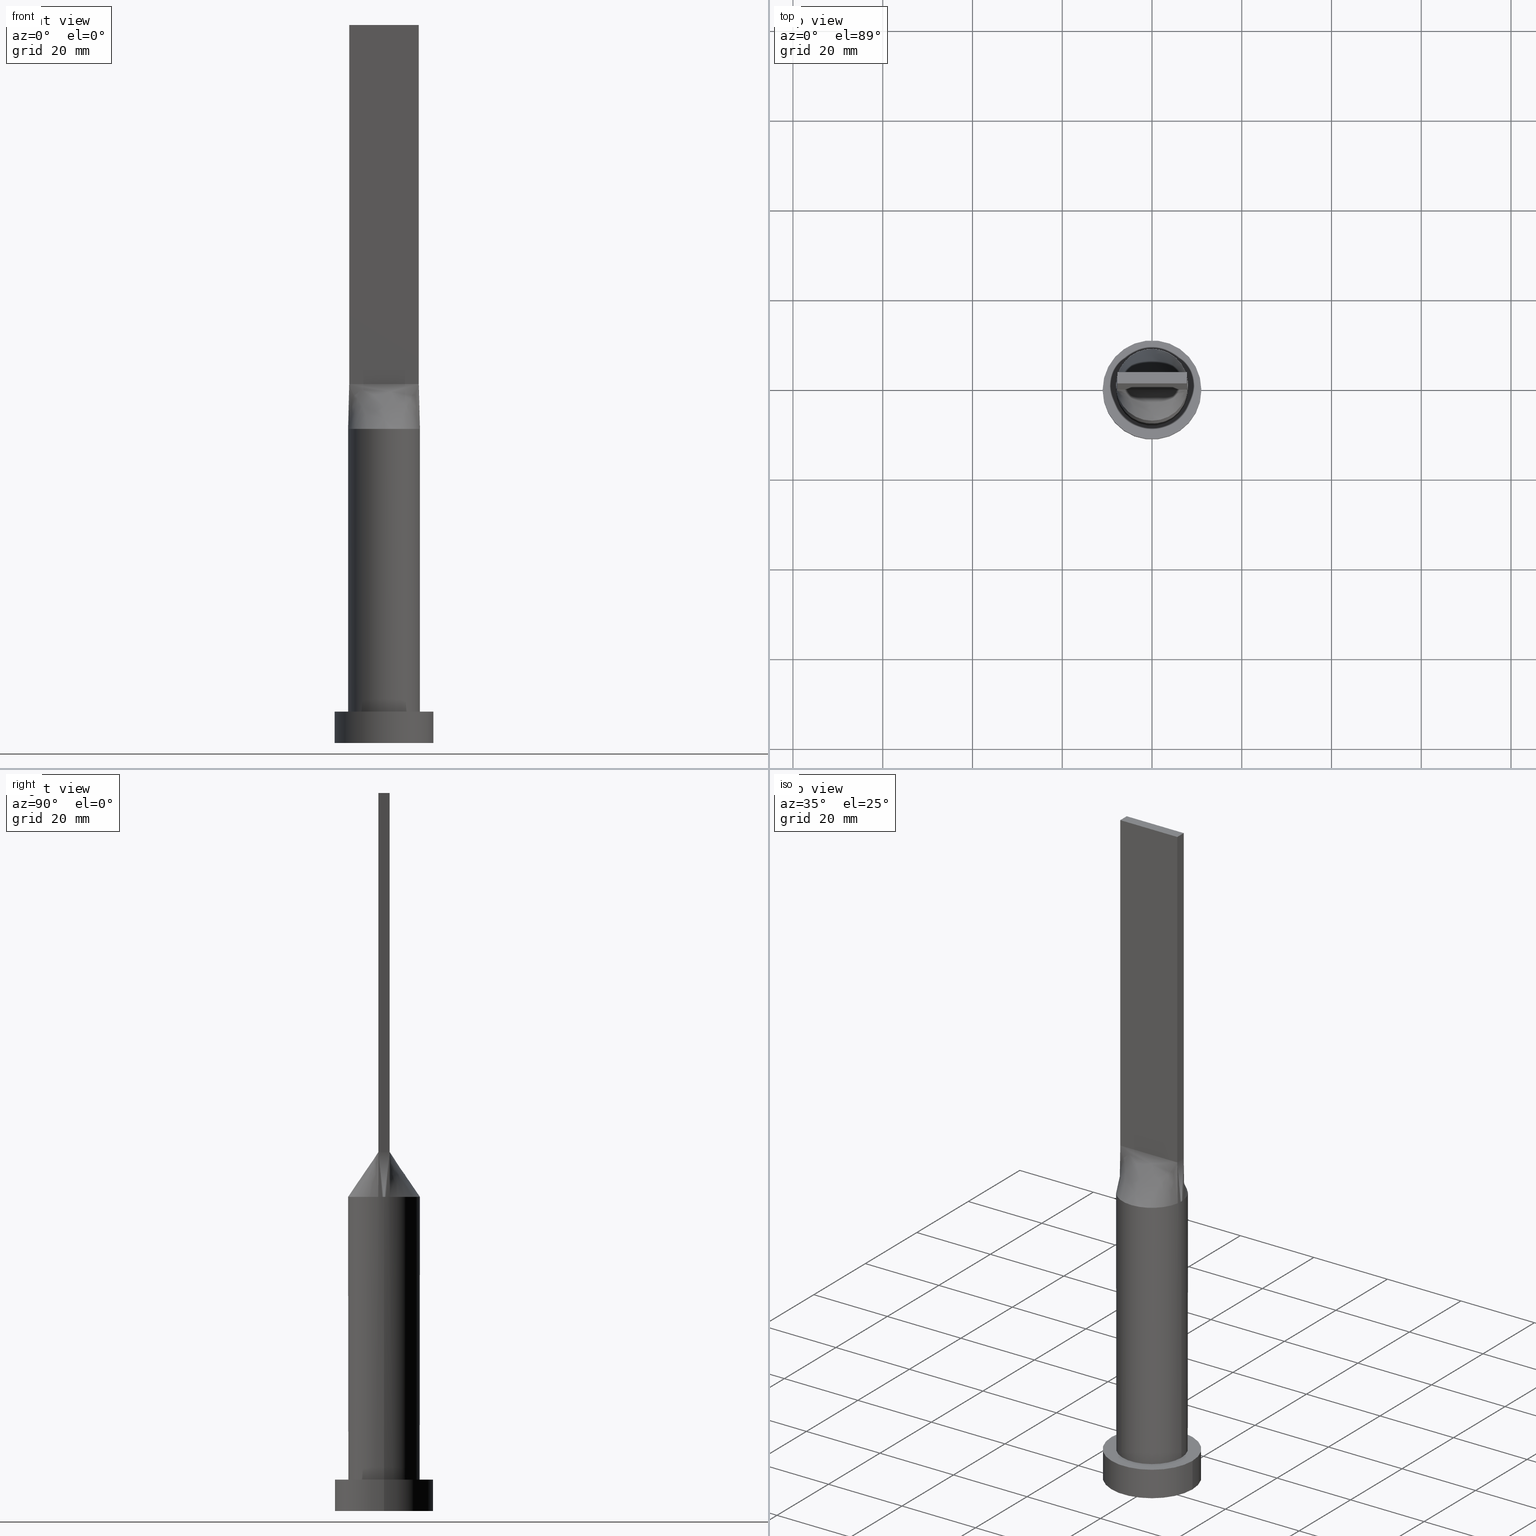
[diagram: canonical four-view strip — front | top / right | iso, engineering-drawing reading convention]
A machine part, canonical four-view strip (front | top / right | iso — engineering-drawing reading convention). The complete STEP part file that produces these views, byte-faithful:
ISO-10303-21;
HEADER;
FILE_DESCRIPTION (( 'STEP AP203' ),
    '1' );
FILE_NAME ('4dbf.STEP',
    '2023-02-13T08:48:47',
    ( '' ),
    ( '' ),
    'SwSTEP 2.0',
    'SolidWorks 2019',
    '' );
FILE_SCHEMA (( 'CONFIG_CONTROL_DESIGN' ));
ENDSEC;

DATA;
#1 = DIRECTION ( 'NONE',  ( 1.000000000000000000, 0.000000000000000000, 0.000000000000000000 ) ) ;
#2 = CC_DESIGN_APPROVAL ( #72, ( #530 ) ) ;
#3 = VERTEX_POINT ( 'NONE', #634 ) ;
#4 = CARTESIAN_POINT ( 'NONE',  ( 0.5677556330368851434, 7.999999999999998224, 70.00000000000000000 ) ) ;
#5 = FACE_OUTER_BOUND ( 'NONE', #395, .T. ) ;
#6 = VERTEX_POINT ( 'NONE', #138 ) ;
#7 = EDGE_CURVE ( 'NONE', #6, #540, #447, .T. ) ;
#8 = DIRECTION ( 'NONE',  ( -1.000000000000000000, 0.000000000000000000, 0.000000000000000000 ) ) ;
#9 = LINE ( 'NONE', #171, #222 ) ;
#10 = CARTESIAN_POINT ( 'NONE',  ( -8.000000000000000000, 0.000000000000000000, 70.00000000000000000 ) ) ;
#11 = DIRECTION ( 'NONE',  ( 1.000000000000000000, 1.776356839400250465E-15, 0.000000000000000000 ) ) ;
#12 = CARTESIAN_POINT ( 'NONE',  ( -1.135368687448994329, 7.938897956688654389, 70.00000000000002842 ) ) ;
#13 = EDGE_CURVE ( 'NONE', #497, #483, #292, .T. ) ;
#14 = CARTESIAN_POINT ( 'NONE',  ( -6.883287261198669960, 4.100742229440782260, 69.99999999999998579 ) ) ;
#15 = CARTESIAN_POINT ( 'NONE',  ( -0.3229166666666666297, -1.249999999999999112, 79.99999999999998579 ) ) ;
#16 = VERTEX_POINT ( 'NONE', #239 ) ;
#17 = CARTESIAN_POINT ( 'NONE',  ( -6.100409024666552327, 5.197691498289451317, 70.00000000000000000 ) ) ;
#18 = CARTESIAN_POINT ( 'NONE',  ( 7.750000000000000000, -1.249999999999999778, 160.0000000000000000 ) ) ;
#19 = CARTESIAN_POINT ( 'NONE',  ( 6.883287261198673512, 4.100742229440780484, 70.00000000000000000 ) ) ;
#20 = LOCAL_TIME ( 9, 48, 47.00000000000000000, #78 ) ;
#21 = EDGE_CURVE ( 'NONE', #631, #136, #34, .T. ) ;
#22 = CARTESIAN_POINT ( 'NONE',  ( 4.217034177653714799, 6.817775467282659818, 70.00000000000001421 ) ) ;
#23 = PLANE ( 'NONE',  #237 ) ;
#24 = MECHANICAL_CONTEXT ( 'NONE', #244, 'mechanical' ) ;
#25 = DIRECTION ( 'NONE',  ( 1.000000000000000000, 0.000000000000000000, -0.000000000000000000 ) ) ;
#26 = APPLICATION_PROTOCOL_DEFINITION ( 'international standard', 'config_control_design', 1994, #139 ) ;
#27 = DIRECTION ( 'NONE',  ( 1.000000000000000000, 0.000000000000000000, 0.000000000000000000 ) ) ;
#28 = PERSON_AND_ORGANIZATION_ROLE ( 'design_owner' ) ;
#29 = CARTESIAN_POINT ( 'NONE',  ( 7.750000000000000000, 1.250000000000000222, 160.0000000000000000 ) ) ;
#30 = CARTESIAN_POINT ( 'NONE',  ( -11.00000000000000000, 0.000000000000000000, 7.000000000000000000 ) ) ;
#31 = EDGE_CURVE ( 'NONE', #147, #6, #89, .T. ) ;
#32 = ORIENTED_EDGE ( 'NONE', *, *, #630, .T. ) ;
#33 = PERSON_AND_ORGANIZATION_ROLE ( 'creator' ) ;
#34 = LINE ( 'NONE', #549, #587 ) ;
#35 = EDGE_CURVE ( 'NONE', #368, #6, #584, .T. ) ;
#36 = ORIENTED_EDGE ( 'NONE', *, *, #291, .F. ) ;
#37 = EDGE_LOOP ( 'NONE', ( #391, #460, #543, #574, #294, #537 ) ) ;
#38 = VECTOR ( 'NONE', #641, 1000.000000000000000 ) ;
#39 = CARTESIAN_POINT ( 'NONE',  ( -7.793128424795161990, -1.923622864214270978, 70.00000000000000000 ) ) ;
#40 = ORIENTED_EDGE ( 'NONE', *, *, #449, .T. ) ;
#41 = DIRECTION ( 'NONE',  ( 0.000000000000000000, 0.000000000000000000, 1.000000000000000000 ) ) ;
#42 = CARTESIAN_POINT ( 'NONE',  ( 5.166666666666668739, -1.249999999999999778, 80.00000000000001421 ) ) ;
#43 = AXIS2_PLACEMENT_3D ( 'NONE', #522, #224, #572 ) ;
#44 = ORIENTED_EDGE ( 'NONE', *, *, #637, .T. ) ;
#45 = CARTESIAN_POINT ( 'NONE',  ( -7.999348843997323044, -0.4273286734864455427, 70.00000000000000000 ) ) ;
#46 = CARTESIAN_POINT ( 'NONE',  ( -5.056714967162549534, 6.220536417275851271, 70.00000000000000000 ) ) ;
#47 = CARTESIAN_POINT ( 'NONE',  ( 11.00000000000000000, 1.347111479062088405E-15, 7.000000000000000000 ) ) ;
#48 = CARTESIAN_POINT ( 'NONE',  ( 0.000000000000000000, 0.000000000000000000, 0.000000000000000000 ) ) ;
#49 = CARTESIAN_POINT ( 'NONE',  ( -1.135368687448994329, 7.938897956688654389, 70.00000000000002842 ) ) ;
#50 = ORIENTED_EDGE ( 'NONE', *, *, #436, .T. ) ;
#51 = CARTESIAN_POINT ( 'NONE',  ( -6.100409024666552327, 5.197691498289451317, 70.00000000000000000 ) ) ;
#52 = EDGE_CURVE ( 'NONE', #595, #368, #350, .T. ) ;
#53 = DIRECTION ( 'NONE',  ( 0.000000000000000000, 0.000000000000000000, 1.000000000000000000 ) ) ;
#54 = CARTESIAN_POINT ( 'NONE',  ( -6.458333333333333925, 1.250000000000000222, 80.00000000000001421 ) ) ;
#55 = CIRCLE ( 'NONE', #201, 11.00000000000000000 ) ;
#56 = ORIENTED_EDGE ( 'NONE', *, *, #13, .T. ) ;
#57 = B_SPLINE_CURVE_WITH_KNOTS ( 'NONE', 3,
 ( #477, #154, #247, #304, #19, #214, #126, #529, #592, #152, #318, #457, #272, #364, #4, #377, #12, #564, #103, #313, #317, #517, #208, #17, #411, #511, #374, #602, #607, #367 ),
 .UNSPECIFIED., .F., .F.,
 ( 4, 2, 2, 2, 2, 2, 2, 2, 2, 2, 2, 2, 2, 2, 4 ),
 ( 0.000000000000000000, 0.1250000000000000000, 0.1875000000000000000, 0.2500000000000000000, 0.3125000000000000000, 0.3750000000000000000, 0.4375000000000000000, 0.5000000000000000000, 0.5625000000000000000, 0.6250000000000000000, 0.6875000000000000000, 0.7500000000000000000, 0.8125000000000000000, 0.8750000000000000000, 1.000000000000000000 ),
 .UNSPECIFIED. ) ;
#58 = DIRECTION ( 'NONE',  ( -1.000000000000000000, 0.000000000000000000, 0.000000000000000000 ) ) ;
#59 = CARTESIAN_POINT ( 'NONE',  ( -3.552083333333333481, -1.249999999999998890, 80.00000000000001421 ) ) ;
#60 = ORIENTED_EDGE ( 'NONE', *, *, #570, .F. ) ;
#61 = FACE_BOUND ( 'NONE', #381, .T. ) ;
#62 = CARTESIAN_POINT ( 'NONE',  ( -2.583333333333333481, -1.249999999999998890, 80.00000000000000000 ) ) ;
#63 = CLOSED_SHELL ( 'NONE', ( #220, #259, #344, #577, #121, #542, #352, #97, #518, #429, #440, #82, #363, #597, #406 ) ) ;
#64 = CARTESIAN_POINT ( 'NONE',  ( 7.750000000000000000, -1.249999999999999778, 160.0000000000000000 ) ) ;
#65 = AXIS2_PLACEMENT_3D ( 'NONE', #128, #626, #471 ) ;
#66 = CARTESIAN_POINT ( 'NONE',  ( 0.000000000000000000, 0.000000000000000000, 0.000000000000000000 ) ) ;
#67 = CARTESIAN_POINT ( 'NONE',  ( 7.104166666666666963, 1.250000000000000222, 79.99999999999998579 ) ) ;
#68 = PERSON_AND_ORGANIZATION ( #372, #114 ) ;
#69 = CARTESIAN_POINT ( 'NONE',  ( -7.750000000000000000, 1.250000000000000222, 80.00000000000000000 ) ) ;
#70 = DIRECTION ( 'NONE',  ( -1.000000000000000000, 0.000000000000000000, 0.000000000000000000 ) ) ;
#71 = CARTESIAN_POINT ( 'NONE',  ( -0.6458333333333333703, -1.249999999999999112, 79.99999999999998579 ) ) ;
#72 = APPROVAL ( #232, 'NEUR�EN�' ) ;
#73 = PLANE ( 'NONE',  #43 ) ;
#74 = CARTESIAN_POINT ( 'NONE',  ( 0.000000000000000000, 0.000000000000000000, 7.000000000000000000 ) ) ;
#75 = CARTESIAN_POINT ( 'NONE',  ( 3.229166666666666519, -1.249999999999999778, 80.00000000000001421 ) ) ;
#76 = ORIENTED_EDGE ( 'NONE', *, *, #380, .F. ) ;
#77 = AXIS2_PLACEMENT_3D ( 'NONE', #74, #628, #319 ) ;
#78 = COORDINATED_UNIVERSAL_TIME_OFFSET ( 1, 0, .AHEAD. ) ;
#79 = CARTESIAN_POINT ( 'NONE',  ( 5.056714967162549534, -6.220536417275852159, 70.00000000000000000 ) ) ;
#80 = CARTESIAN_POINT ( 'NONE',  ( -7.823964482850588986, -1.261929755298480726, 75.00000000000001421 ) ) ;
#81 = CALENDAR_DATE ( 2023, 13, 2 ) ;
#82 = ADVANCED_FACE ( 'NONE', ( #525 ), #340, .F. ) ;
#83 = CARTESIAN_POINT ( 'NONE',  ( -7.750000000000000000, 1.250000000000000222, 80.00000000000000000 ) ) ;
#84 = APPROVAL_DATE_TIME ( #355, #550 ) ;
#85 = COORDINATED_UNIVERSAL_TIME_OFFSET ( 1, 0, .AHEAD. ) ;
#86 = CARTESIAN_POINT ( 'NONE',  ( 7.897939137640443974, 1.273861156091724789, 70.00000000000000000 ) ) ;
#87 = PLANE ( 'NONE',  #137 ) ;
#88 = ORIENTED_EDGE ( 'NONE', *, *, #31, .T. ) ;
#89 = LINE ( 'NONE', #580, #38 ) ;
#90 = COORDINATED_UNIVERSAL_TIME_OFFSET ( 1, 0, .AHEAD. ) ;
#91 = CARTESIAN_POINT ( 'NONE',  ( 6.883287261198673512, 4.100742229440780484, 70.00000000000000000 ) ) ;
#92 = CARTESIAN_POINT ( 'NONE',  ( 7.999674421998661522, 1.953788361903730848E-15, 70.00000000000000000 ) ) ;
#93 = DIRECTION ( 'NONE',  ( 5.595882180570345426E-17, 1.000000000000000000, -0.000000000000000000 ) ) ;
#94 = B_SPLINE_SURFACE_WITH_KNOTS ( 'NONE', 3, 1, ( 
 ( #366, #560 ),
 ( #327, #67 ),
 ( #434, #476 ),
 ( #342, #195 ),
 ( #91, #566 ),
 ( #270, #431 ),
 ( #325, #115 ),
 ( #221, #423 ),
 ( #330, #336 ),
 ( #22, #621 ),
 ( #185, #385 ),
 ( #223, #524 ),
 ( #282, #531 ),
 ( #111, #209 ),
 ( #104, #314 ),
 ( #309, #507 ),
 ( #49, #258 ),
 ( #205, #409 ),
 ( #601, #274 ),
 ( #211, #175 ),
 ( #163, #269 ),
 ( #46, #563 ),
 ( #264, #461 ),
 ( #51, #124 ),
 ( #527, #611 ),
 ( #14, #262 ),
 ( #427, #370 ),
 ( #109, #54 ),
 ( #172, #225 ),
 ( #576, #69 ) ),
 .UNSPECIFIED., .F., .F., .F.,
 ( 4, 2, 2, 2, 2, 2, 2, 2, 2, 2, 2, 2, 2, 2, 4 ),
 ( 2, 2 ),
 ( 0.000000000000000000, 0.1250000000000000000, 0.1875000000000000000, 0.2500000000000000000, 0.3125000000000000000, 0.3750000000000000000, 0.4375000000000000000, 0.5000000000000000000, 0.5625000000000000000, 0.6250000000000000000, 0.6875000000000000000, 0.7500000000000000000, 0.8125000000000000000, 0.8750000000000000000, 1.000000000000000000 ),
 ( 0.000000000000000000, 1.000000000000000000 ),
 .UNSPECIFIED. ) ;
#95 = ORIENTED_EDGE ( 'NONE', *, *, #321, .T. ) ;
#96 = CARTESIAN_POINT ( 'NONE',  ( 0.000000000000000000, 0.000000000000000000, 160.0000000000000000 ) ) ;
#97 = ADVANCED_FACE ( 'NONE', ( #271 ), #252, .T. ) ;
#98 = ORIENTED_EDGE ( 'NONE', *, *, #570, .T. ) ;
#99 = FACE_OUTER_BOUND ( 'NONE', #629, .T. ) ;
#100 = CARTESIAN_POINT ( 'NONE',  ( 7.750000000000000000, 1.250000000000000222, 160.0000000000000000 ) ) ;
#101 = VECTOR ( 'NONE', #369, 1000.000000000000000 ) ;
#102 = CARTESIAN_POINT ( 'NONE',  ( -7.897928965701177084, -1.273859510596962119, 70.00000000000000000 ) ) ;
#103 = CARTESIAN_POINT ( 'NONE',  ( -2.762781956618985291, 7.527418670504290255, 70.00000000000001421 ) ) ;
#104 = CARTESIAN_POINT ( 'NONE',  ( 0.5677556330368851434, 7.999999999999998224, 70.00000000000000000 ) ) ;
#105 = EDGE_CURVE ( 'NONE', #106, #3, #133, .T. ) ;
#106 = VERTEX_POINT ( 'NONE', #122 ) ;
#107 = DIRECTION ( 'NONE',  ( 0.000000000000000000, -0.000000000000000000, -1.000000000000000000 ) ) ;
#108 = ORIENTED_EDGE ( 'NONE', *, *, #177, .T. ) ;
#109 = CARTESIAN_POINT ( 'NONE',  ( -7.597511974649647115, 2.632154125590751903, 70.00000000000001421 ) ) ;
#110 = ORIENTED_EDGE ( 'NONE', *, *, #130, .T. ) ;
#111 = CARTESIAN_POINT ( 'NONE',  ( 1.135368687448996328, 7.938897956688654389, 70.00000000000001421 ) ) ;
#112 = CYLINDRICAL_SURFACE ( 'NONE', #514, 8.000000000000000000 ) ;
#113 = CARTESIAN_POINT ( 'NONE',  ( 0.5677556330368840332, -7.999999999999998224, 69.99999999999998579 ) ) ;
#114 = ORGANIZATION ( 'NEUR�EN�', 'NEUR�EN�', '' ) ;
#115 = CARTESIAN_POINT ( 'NONE',  ( 4.197916666666667851, 1.250000000000000222, 80.00000000000001421 ) ) ;
#116 = CARTESIAN_POINT ( 'NONE',  ( 7.750000000000000000, -1.249999999999999778, 80.00000000000000000 ) ) ;
#117 = CARTESIAN_POINT ( 'NONE',  ( -7.999674421998661522, -1.996358676257538358E-15, 70.00000000000000000 ) ) ;
#118 = ORIENTED_EDGE ( 'NONE', *, *, #486, .T. ) ;
#119 = UNCERTAINTY_MEASURE_WITH_UNIT (LENGTH_MEASURE( 1.000000000000000082E-05 ), #343, 'distance_accuracy_value', 'NONE');
#120 = DIRECTION ( 'NONE',  ( 1.000000000000000000, -5.595882180570345426E-17, 0.000000000000000000 ) ) ;
#121 = ADVANCED_FACE ( 'NONE', ( #520 ), #23, .F. ) ;
#122 = CARTESIAN_POINT ( 'NONE',  ( -8.000000000000000000, 0.000000000000000000, 7.000000000000000000 ) ) ;
#123 = LINE ( 'NONE', #332, #323 ) ;
#124 = CARTESIAN_POINT ( 'NONE',  ( -4.197916666666666075, 1.250000000000000222, 80.00000000000001421 ) ) ;
#125 = CARTESIAN_POINT ( 'NONE',  ( -6.100409024666552327, -5.197691498289450429, 70.00000000000000000 ) ) ;
#126 = CARTESIAN_POINT ( 'NONE',  ( 6.100409024666552327, 5.197691498289451317, 70.00000000000000000 ) ) ;
#127 = CIRCLE ( 'NONE', #65, 11.00000000000000000 ) ;
#128 = CARTESIAN_POINT ( 'NONE',  ( 0.000000000000000000, 0.000000000000000000, 7.000000000000000000 ) ) ;
#129 = CARTESIAN_POINT ( 'NONE',  ( -4.520833333333333037, -1.249999999999998890, 80.00000000000001421 ) ) ;
#130 = EDGE_CURVE ( 'NONE', #541, #540, #219, .T. ) ;
#131 = DIRECTION ( 'NONE',  ( -0.000000000000000000, -0.000000000000000000, -1.000000000000000000 ) ) ;
#132 = ORIENTED_EDGE ( 'NONE', *, *, #291, .T. ) ;
#133 = CIRCLE ( 'NONE', #469, 8.000000000000000000 ) ;
#134 = APPLICATION_PROTOCOL_DEFINITION ( 'international standard', 'config_control_design', 1994, #244 ) ;
#135 = ORIENTED_EDGE ( 'NONE', *, *, #198, .T. ) ;
#136 = VERTEX_POINT ( 'NONE', #386 ) ;
#137 = AXIS2_PLACEMENT_3D ( 'NONE', #301, #93, #446 ) ;
#138 = CARTESIAN_POINT ( 'NONE',  ( -7.750000000000000000, -1.249999999999998890, 80.00000000000000000 ) ) ;
#139 = APPLICATION_CONTEXT ( 'configuration controlled 3d designs of mechanical parts and assemblies' ) ;
#140 = AXIS2_PLACEMENT_3D ( 'NONE', #96, #41, #307 ) ;
#141 = DATE_TIME_ROLE ( 'classification_date' ) ;
#142 = CC_DESIGN_PERSON_AND_ORGANIZATION_ASSIGNMENT ( #68, #28, ( #627 ) ) ;
#143 = APPROVAL_DATE_TIME ( #400, #207 ) ;
#144 = ORIENTED_EDGE ( 'NONE', *, *, #472, .T. ) ;
#145 = PERSON_AND_ORGANIZATION ( #372, #114 ) ;
#146 = DIRECTION ( 'NONE',  ( -1.000000000000000000, 0.000000000000000000, 0.000000000000000000 ) ) ;
#147 = VERTEX_POINT ( 'NONE', #623 ) ;
#148 = EDGE_LOOP ( 'NONE', ( #155, #452, #425, #606 ) ) ;
#149 = CIRCLE ( 'NONE', #513, 11.00000000000000000 ) ;
#150 = COORDINATED_UNIVERSAL_TIME_OFFSET ( 1, 0, .AHEAD. ) ;
#151 = VECTOR ( 'NONE', #268, 1000.000000000000000 ) ;
#152 = CARTESIAN_POINT ( 'NONE',  ( 4.217034177653714799, 6.817775467282659818, 70.00000000000001421 ) ) ;
#153 = CARTESIAN_POINT ( 'NONE',  ( -7.750000000000000000, 1.250000000000000222, 80.00000000000000000 ) ) ;
#154 = CARTESIAN_POINT ( 'NONE',  ( 7.793128424795161990, 1.923622864214272088, 70.00000000000000000 ) ) ;
#155 = ORIENTED_EDGE ( 'NONE', *, *, #52, .T. ) ;
#156 = LINE ( 'NONE', #312, #539 ) ;
#157 = ORIENTED_EDGE ( 'NONE', *, *, #582, .F. ) ;
#158 = CARTESIAN_POINT ( 'NONE',  ( 11.00000000000000000, 1.347111479062088405E-15, 7.000000000000000000 ) ) ;
#159 = DIRECTION ( 'NONE',  ( -1.000000000000000000, 0.000000000000000000, 0.000000000000000000 ) ) ;
#160 = DIRECTION ( 'NONE',  ( -0.000000000000000000, 1.000000000000000000, -0.000000000000000000 ) ) ;
#161 = EDGE_CURVE ( 'NONE', #305, #263, #479, .T. ) ;
#162 = VERTEX_POINT ( 'NONE', #29 ) ;
#163 = CARTESIAN_POINT ( 'NONE',  ( -4.217034177653714799, 6.817775467282660706, 70.00000000000001421 ) ) ;
#164 = CARTESIAN_POINT ( 'NONE',  ( -7.750000000000000000, -1.249999999999998890, 80.00000000000000000 ) ) ;
#165 = FACE_OUTER_BOUND ( 'NONE', #148, .T. ) ;
#166 = CARTESIAN_POINT ( 'NONE',  ( -4.197916666666666963, -1.249999999999998890, 80.00000000000001421 ) ) ;
#167 = DIRECTION ( 'NONE',  ( 1.000000000000000000, 0.000000000000000000, 0.000000000000000000 ) ) ;
#168 = DESIGN_CONTEXT ( 'detailed design', #139, 'design' ) ;
#169 = CARTESIAN_POINT ( 'NONE',  ( 0.6458333333333333703, -1.249999999999999112, 79.99999999999998579 ) ) ;
#170 = CARTESIAN_POINT ( 'NONE',  ( 7.897928965701177084, -1.273859510596965006, 70.00000000000000000 ) ) ;
#171 = CARTESIAN_POINT ( 'NONE',  ( 7.750000000000000000, 1.250000000000000222, 80.00000000000000000 ) ) ;
#172 = CARTESIAN_POINT ( 'NONE',  ( -7.793128424795161102, 1.923622864214273198, 70.00000000000000000 ) ) ;
#173 = CARTESIAN_POINT ( 'NONE',  ( -4.217034177653715687, -6.817775467282659818, 70.00000000000001421 ) ) ;
#174 = AXIS2_PLACEMENT_3D ( 'NONE', #203, #557, #159 ) ;
#175 = CARTESIAN_POINT ( 'NONE',  ( -2.260416666666665630, 1.250000000000000222, 79.99999999999998579 ) ) ;
#176 = CARTESIAN_POINT ( 'NONE',  ( 7.897928965701177084, 1.273859510596963007, 70.00000000000000000 ) ) ;
#177 = EDGE_CURVE ( 'NONE', #562, #368, #545, .T. ) ;
#178 = DIRECTION ( 'NONE',  ( 0.000000000000000000, 0.000000000000000000, 1.000000000000000000 ) ) ;
#179 = CARTESIAN_POINT ( 'NONE',  ( -6.883287261198673512, -4.100742229440781372, 70.00000000000000000 ) ) ;
#180 = CARTESIAN_POINT ( 'NONE',  ( 2.260416666666666519, -1.249999999999999334, 79.99999999999998579 ) ) ;
#181 = CARTESIAN_POINT ( 'NONE',  ( 7.750000000000000000, 0.4166666666666662966, 79.99999999999998579 ) ) ;
#182 = DIRECTION ( 'NONE',  ( 0.000000000000000000, 0.000000000000000000, 1.000000000000000000 ) ) ;
#183 = CARTESIAN_POINT ( 'NONE',  ( 2.583333333333333481, -1.249999999999999556, 80.00000000000000000 ) ) ;
#184 = VECTOR ( 'NONE', #453, 1000.000000000000000 ) ;
#185 = CARTESIAN_POINT ( 'NONE',  ( 3.754841939107309567, 7.084924699190306541, 70.00000000000001421 ) ) ;
#186 = APPROVAL_DATE_TIME ( #536, #72 ) ;
#187 = CARTESIAN_POINT ( 'NONE',  ( -5.489583333333332149, -1.249999999999998890, 79.99999999999998579 ) ) ;
#188 = CC_DESIGN_DATE_AND_TIME_ASSIGNMENT ( #632, #141, ( #339 ) ) ;
#189 = CIRCLE ( 'NONE', #356, 11.00000000000000000 ) ;
#190 = DIRECTION ( 'NONE',  ( 1.000000000000000000, 0.000000000000000000, 0.000000000000000000 ) ) ;
#191 = EDGE_LOOP ( 'NONE', ( #437, #360 ) ) ;
#192 = APPROVAL_ROLE ( '' ) ;
#193 = DIRECTION ( 'NONE',  ( -0.01479123618026851987, 0.002385683254881967950, 0.9998877576246579801 ) ) ;
#194 = DIRECTION ( 'NONE',  ( -0.000000000000000000, -0.000000000000000000, -1.000000000000000000 ) ) ;
#195 = CARTESIAN_POINT ( 'NONE',  ( 5.489583333333333037, 1.250000000000000222, 79.99999999999998579 ) ) ;
#196 = VECTOR ( 'NONE', #238, 1000.000000000000000 ) ;
#197 = CARTESIAN_POINT ( 'NONE',  ( 6.883287261198672624, -4.100742229440781372, 69.99999999999998579 ) ) ;
#198 = EDGE_CURVE ( 'NONE', #540, #497, #293, .T. ) ;
#199 = EDGE_LOOP ( 'NONE', ( #310, #32, #488, #438 ) ) ;
#200 = ORIENTED_EDGE ( 'NONE', *, *, #31, .F. ) ;
#201 = AXIS2_PLACEMENT_3D ( 'NONE', #48, #53, #463 ) ;
#202 = CARTESIAN_POINT ( 'NONE',  ( -7.999348843997323044, 0.4273286734864477077, 70.00000000000000000 ) ) ;
#203 = CARTESIAN_POINT ( 'NONE',  ( 0.000000000000000000, 0.000000000000000000, 7.000000000000000000 ) ) ;
#204 = CARTESIAN_POINT ( 'NONE',  ( 6.458333333333334814, -1.249999999999999778, 80.00000000000001421 ) ) ;
#205 = CARTESIAN_POINT ( 'NONE',  ( -2.232993174580875539, 7.702525839322460044, 70.00000000000001421 ) ) ;
#206 = ORIENTED_EDGE ( 'NONE', *, *, #21, .F. ) ;
#207 = APPROVAL ( #591, 'NEUR�EN�' ) ;
#208 = CARTESIAN_POINT ( 'NONE',  ( -5.434261125067506804, 5.890653037160105576, 70.00000000000001421 ) ) ;
#209 = CARTESIAN_POINT ( 'NONE',  ( 0.6458333333333345916, 1.250000000000000222, 79.99999999999998579 ) ) ;
#210 = ORIENTED_EDGE ( 'NONE', *, *, #21, .T. ) ;
#211 = CARTESIAN_POINT ( 'NONE',  ( -3.754841939107308235, 7.084924699190308317, 70.00000000000000000 ) ) ;
#212 = CARTESIAN_POINT ( 'NONE',  ( -7.750000000000000000, 0.8333333333333350357, 79.99999999999998579 ) ) ;
#213 =( GEOMETRIC_REPRESENTATION_CONTEXT ( 3 ) GLOBAL_UNCERTAINTY_ASSIGNED_CONTEXT ( ( #119 ) ) GLOBAL_UNIT_ASSIGNED_CONTEXT ( ( #343, #345, #390 ) ) REPRESENTATION_CONTEXT ( 'NONE', 'WORKASPACE' ) );
#214 = CARTESIAN_POINT ( 'NONE',  ( 6.389139692789920666, 4.834731051311459638, 70.00000000000001421 ) ) ;
#215 = EDGE_LOOP ( 'NONE', ( #405, #302, #132, #565, #412 ) ) ;
#216 = FACE_OUTER_BOUND ( 'NONE', #298, .T. ) ;
#217 = CARTESIAN_POINT ( 'NONE',  ( -3.754841939107310456, -7.084924699190306541, 70.00000000000001421 ) ) ;
#218 = DIRECTION ( 'NONE',  ( 0.000000000000000000, -1.000000000000000000, 0.000000000000000000 ) ) ;
#219 = CIRCLE ( 'NONE', #600, 8.000000000000000000 ) ;
#220 = ADVANCED_FACE ( 'NONE', ( #365 ), #503, .T. ) ;
#221 = CARTESIAN_POINT ( 'NONE',  ( 5.434261125067508580, 5.890653037160103800, 70.00000000000001421 ) ) ;
#222 = VECTOR ( 'NONE', #160, 1000.000000000000000 ) ;
#223 = CARTESIAN_POINT ( 'NONE',  ( 2.762781956618984847, 7.527418670504289366, 70.00000000000000000 ) ) ;
#224 = DIRECTION ( 'NONE',  ( 0.000000000000000000, 0.000000000000000000, 1.000000000000000000 ) ) ;
#225 = CARTESIAN_POINT ( 'NONE',  ( -7.104166666666667851, 1.250000000000000222, 80.00000000000001421 ) ) ;
#226 = CARTESIAN_POINT ( 'NONE',  ( 2.232993174580876428, -7.702525839322460044, 70.00000000000001421 ) ) ;
#227 = DIRECTION ( 'NONE',  ( 0.000000000000000000, 0.000000000000000000, 1.000000000000000000 ) ) ;
#228 = EDGE_CURVE ( 'NONE', #305, #3, #636, .T. ) ;
#229 = PERSON_AND_ORGANIZATION ( #372, #114 ) ;
#230 = CARTESIAN_POINT ( 'NONE',  ( -6.389139692789920666, -4.834731051311459638, 70.00000000000001421 ) ) ;
#231 = DIRECTION ( 'NONE',  ( 0.000000000000000000, 0.000000000000000000, 1.000000000000000000 ) ) ;
#232 = APPROVAL_STATUS ( 'not_yet_approved' ) ;
#233 = CIRCLE ( 'NONE', #413, 8.000000000000000000 ) ;
#234 = AXIS2_PLACEMENT_3D ( 'NONE', #18, #70, #182 ) ;
#235 = CARTESIAN_POINT ( 'NONE',  ( -7.750000000000000000, 1.250000000000000222, 160.0000000000000000 ) ) ;
#236 = EDGE_CURVE ( 'NONE', #16, #136, #149, .T. ) ;
#237 = AXIS2_PLACEMENT_3D ( 'NONE', #66, #337, #25 ) ;
#238 = DIRECTION ( 'NONE',  ( 0.000000000000000000, -1.000000000000000000, 0.000000000000000000 ) ) ;
#239 = CARTESIAN_POINT ( 'NONE',  ( 11.00000000000000000, 1.347111479062088405E-15, 0.000000000000000000 ) ) ;
#240 = CARTESIAN_POINT ( 'NONE',  ( 0.000000000000000000, 0.000000000000000000, 70.00000000000000000 ) ) ;
#241 = CARTESIAN_POINT ( 'NONE',  ( 8.000000000000000000, 9.797174393178825657E-16, 70.00000000000000000 ) ) ;
#242 = SECURITY_CLASSIFICATION_LEVEL ( 'unclassified' ) ;
#243 = EDGE_CURVE ( 'NONE', #497, #305, #233, .T. ) ;
#244 = APPLICATION_CONTEXT ( 'configuration controlled 3d designs of mechanical parts and assemblies' ) ;
#245 = CARTESIAN_POINT ( 'NONE',  ( 4.197916666666667851, -1.249999999999999778, 80.00000000000001421 ) ) ;
#246 = EDGE_LOOP ( 'NONE', ( #494, #315 ) ) ;
#247 = CARTESIAN_POINT ( 'NONE',  ( 7.597511974649646227, 2.632154125590748350, 69.99999999999998579 ) ) ;
#248 = APPROVAL_STATUS ( 'not_yet_approved' ) ;
#249 = CARTESIAN_POINT ( 'NONE',  ( -7.104166666666666963, -1.249999999999998890, 79.99999999999998579 ) ) ;
#250 = CARTESIAN_POINT ( 'NONE',  ( 7.597511974649644451, -2.632154125590752347, 70.00000000000001421 ) ) ;
#251 = EDGE_LOOP ( 'NONE', ( #508, #200, #260, #40 ) ) ;
#252 = B_SPLINE_SURFACE_WITH_KNOTS ( 'NONE', 3, 1, ( 
 ( #170, #116 ),
 ( #275, #616 ),
 ( #614, #379 ),
 ( #428, #181 ),
 ( #433, #473 ),
 ( #176, #331 ) ),
 .UNSPECIFIED., .F., .F., .F.,
 ( 4, 2, 4 ),
 ( 2, 2 ),
 ( 0.000000000000000000, 0.5000000000000000000, 1.000000000000000000 ),
 ( 0.000000000000000000, 1.000000000000000000 ),
 .UNSPECIFIED. ) ;
#253 = CIRCLE ( 'NONE', #594, 8.000000000000000000 ) ;
#254 = PLANE ( 'NONE',  #140 ) ;
#255 = CARTESIAN_POINT ( 'NONE',  ( 7.750000000000000000, -1.249999999999999778, 160.0000000000000000 ) ) ;
#256 = DIRECTION ( 'NONE',  ( -0.000000000000000000, -0.000000000000000000, -1.000000000000000000 ) ) ;
#257 = CARTESIAN_POINT ( 'NONE',  ( 6.100409024666552327, -5.197691498289451317, 70.00000000000000000 ) ) ;
#258 = CARTESIAN_POINT ( 'NONE',  ( -0.6458333333333320381, 1.250000000000000222, 79.99999999999998579 ) ) ;
#259 = ADVANCED_FACE ( 'NONE', ( #418 ), #439, .T. ) ;
#260 = ORIENTED_EDGE ( 'NONE', *, *, #630, .F. ) ;
#261 = CARTESIAN_POINT ( 'NONE',  ( -7.750000000000000000, 0.4166666666666691277, 79.99999999999998579 ) ) ;
#262 = CARTESIAN_POINT ( 'NONE',  ( -5.166666666666666963, 1.250000000000000222, 80.00000000000001421 ) ) ;
#263 = VERTEX_POINT ( 'NONE', #86 ) ;
#264 = CARTESIAN_POINT ( 'NONE',  ( -5.434261125067506804, 5.890653037160105576, 70.00000000000001421 ) ) ;
#265 = CARTESIAN_POINT ( 'NONE',  ( -7.897928965701177084, 1.273859510596964340, 70.00000000000000000 ) ) ;
#266 = CARTESIAN_POINT ( 'NONE',  ( -7.750000000000000000, 1.250000000000000222, 80.00000000000000000 ) ) ;
#267 = VECTOR ( 'NONE', #256, 1000.000000000000000 ) ;
#268 = DIRECTION ( 'NONE',  ( -0.000000000000000000, -0.000000000000000000, -1.000000000000000000 ) ) ;
#269 = CARTESIAN_POINT ( 'NONE',  ( -2.583333333333332593, 1.250000000000000222, 80.00000000000000000 ) ) ;
#270 = CARTESIAN_POINT ( 'NONE',  ( 6.389139692789920666, 4.834731051311459638, 70.00000000000001421 ) ) ;
#271 = FACE_OUTER_BOUND ( 'NONE', #215, .T. ) ;
#272 = CARTESIAN_POINT ( 'NONE',  ( 2.232993174580878204, 7.702525839322459156, 70.00000000000002842 ) ) ;
#273 = EDGE_CURVE ( 'NONE', #3, #106, #378, .T. ) ;
#274 = CARTESIAN_POINT ( 'NONE',  ( -1.614583333333331927, 1.250000000000000222, 79.99999999999998579 ) ) ;
#275 = CARTESIAN_POINT ( 'NONE',  ( 7.965542217898607724, -0.8546573469728951933, 70.00000000000000000 ) ) ;
#276 = ORIENTED_EDGE ( 'NONE', *, *, #52, .F. ) ;
#277 = FACE_OUTER_BOUND ( 'NONE', #396, .T. ) ;
#278 = DIRECTION ( 'NONE',  ( -0.000000000000000000, -0.000000000000000000, -1.000000000000000000 ) ) ;
#279 = CC_DESIGN_SECURITY_CLASSIFICATION ( #339, ( #499 ) ) ;
#280 = CARTESIAN_POINT ( 'NONE',  ( 1.614583333333333259, -1.249999999999999334, 79.99999999999998579 ) ) ;
#281 = EDGE_CURVE ( 'NONE', #162, #595, #498, .T. ) ;
#282 = CARTESIAN_POINT ( 'NONE',  ( 2.232993174580878204, 7.702525839322459156, 70.00000000000002842 ) ) ;
#283 = PLANE ( 'NONE',  #234 ) ;
#284 = DIRECTION ( 'NONE',  ( -1.000000000000000000, -0.000000000000000000, -0.000000000000000000 ) ) ;
#285 = ORIENTED_EDGE ( 'NONE', *, *, #35, .F. ) ;
#286 = CARTESIAN_POINT ( 'NONE',  ( -0.5677556330368861426, -7.999999999999998224, 70.00000000000000000 ) ) ;
#287 = CARTESIAN_POINT ( 'NONE',  ( -7.750000000000000000, -1.249999999999998890, 160.0000000000000000 ) ) ;
#288 = LOCAL_TIME ( 9, 48, 47.00000000000000000, #388 ) ;
#289 = ORIENTED_EDGE ( 'NONE', *, *, #177, .F. ) ;
#290 = CALENDAR_DATE ( 2023, 13, 2 ) ;
#291 = EDGE_CURVE ( 'NONE', #263, #595, #359, .T. ) ;
#292 = LINE ( 'NONE', #490, #609 ) ;
#293 = CIRCLE ( 'NONE', #384, 8.000000000000000000 ) ;
#294 = ORIENTED_EDGE ( 'NONE', *, *, #617, .F. ) ;
#295 = CALENDAR_DATE ( 2023, 13, 2 ) ;
#296 = CARTESIAN_POINT ( 'NONE',  ( 3.552083333333333481, -1.249999999999999778, 80.00000000000001421 ) ) ;
#297 = LOCAL_TIME ( 9, 48, 47.00000000000000000, #85 ) ;
#298 = EDGE_LOOP ( 'NONE', ( #484, #110, #445, #285, #289 ) ) ;
#299 = CC_DESIGN_PERSON_AND_ORGANIZATION_ASSIGNMENT ( #351, #393, ( #499 ) ) ;
#300 = PERSON_AND_ORGANIZATION ( #372, #114 ) ;
#301 = CARTESIAN_POINT ( 'NONE',  ( -7.750000000000000000, -1.249999999999998890, 160.0000000000000000 ) ) ;
#302 = ORIENTED_EDGE ( 'NONE', *, *, #161, .T. ) ;
#303 = CARTESIAN_POINT ( 'NONE',  ( 0.000000000000000000, 0.000000000000000000, 7.000000000000000000 ) ) ;
#304 = CARTESIAN_POINT ( 'NONE',  ( 7.088837466865212988, 3.729743859143727303, 70.00000000000002842 ) ) ;
#305 = VERTEX_POINT ( 'NONE', #92 ) ;
#306 = CC_DESIGN_APPROVAL ( #207, ( #499 ) ) ;
#307 = DIRECTION ( 'NONE',  ( 1.000000000000000000, 0.000000000000000000, -0.000000000000000000 ) ) ;
#308 = DIRECTION ( 'NONE',  ( 0.000000000000000000, 1.000000000000000000, 0.000000000000000000 ) ) ;
#309 = CARTESIAN_POINT ( 'NONE',  ( -0.5677556330368852544, 7.999999999999998224, 69.99999999999998579 ) ) ;
#310 = ORIENTED_EDGE ( 'NONE', *, *, #504, .T. ) ;
#311 = DIRECTION ( 'NONE',  ( 1.000000000000000000, 0.000000000000000000, 0.000000000000000000 ) ) ;
#312 = CARTESIAN_POINT ( 'NONE',  ( -7.750000000000000000, -1.249999999999998890, 80.00000000000000000 ) ) ;
#313 = CARTESIAN_POINT ( 'NONE',  ( -3.754841939107308235, 7.084924699190308317, 70.00000000000000000 ) ) ;
#314 = CARTESIAN_POINT ( 'NONE',  ( 0.3229166666666679064, 1.250000000000000444, 79.99999999999998579 ) ) ;
#315 = ORIENTED_EDGE ( 'NONE', *, *, #608, .T. ) ;
#316 = CARTESIAN_POINT ( 'NONE',  ( 0.000000000000000000, 0.000000000000000000, 70.00000000000000000 ) ) ;
#317 = CARTESIAN_POINT ( 'NONE',  ( -4.217034177653714799, 6.817775467282660706, 70.00000000000001421 ) ) ;
#318 = CARTESIAN_POINT ( 'NONE',  ( 3.754841939107309567, 7.084924699190306541, 70.00000000000001421 ) ) ;
#319 = DIRECTION ( 'NONE',  ( 1.000000000000000000, 0.000000000000000000, 0.000000000000000000 ) ) ;
#320 = CARTESIAN_POINT ( 'NONE',  ( 1.291666666666666741, -1.249999999999999112, 79.99999999999998579 ) ) ;
#321 = EDGE_CURVE ( 'NONE', #541, #106, #455, .T. ) ;
#322 = CARTESIAN_POINT ( 'NONE',  ( 0.000000000000000000, 0.000000000000000000, 70.00000000000000000 ) ) ;
#323 = VECTOR ( 'NONE', #387, 1000.000000000000000 ) ;
#324 = CARTESIAN_POINT ( 'NONE',  ( 1.135368687448994107, -7.938897956688654389, 70.00000000000002842 ) ) ;
#325 = CARTESIAN_POINT ( 'NONE',  ( 6.100409024666552327, 5.197691498289451317, 70.00000000000000000 ) ) ;
#326 = CARTESIAN_POINT ( 'NONE',  ( -7.750000000000000000, 1.250000000000000222, 160.0000000000000000 ) ) ;
#327 = CARTESIAN_POINT ( 'NONE',  ( 7.793128424795161990, 1.923622864214272088, 70.00000000000000000 ) ) ;
#328 = FACE_OUTER_BOUND ( 'NONE', #468, .T. ) ;
#329 = CARTESIAN_POINT ( 'NONE',  ( -7.088837466865212988, -3.729743859143725526, 70.00000000000002842 ) ) ;
#330 = CARTESIAN_POINT ( 'NONE',  ( 5.056714967162550423, 6.220536417275850383, 70.00000000000001421 ) ) ;
#331 = CARTESIAN_POINT ( 'NONE',  ( 7.750000000000000000, 1.250000000000000222, 80.00000000000000000 ) ) ;
#332 = CARTESIAN_POINT ( 'NONE',  ( -7.750000000000000000, 1.250000000000000222, 160.0000000000000000 ) ) ;
#333 = AXIS2_PLACEMENT_3D ( 'NONE', #444, #450, #480 ) ;
#334 = CARTESIAN_POINT ( 'NONE',  ( -5.056714967162550423, -6.220536417275850383, 70.00000000000001421 ) ) ;
#335 = CC_DESIGN_DATE_AND_TIME_ASSIGNMENT ( #441, #585, ( #530 ) ) ;
#336 = CARTESIAN_POINT ( 'NONE',  ( 3.229166666666667407, 1.250000000000000222, 80.00000000000001421 ) ) ;
#337 = DIRECTION ( 'NONE',  ( 0.000000000000000000, 0.000000000000000000, 1.000000000000000000 ) ) ;
#338 = CARTESIAN_POINT ( 'NONE',  ( -2.232993174580879092, -7.702525839322459156, 70.00000000000002842 ) ) ;
#339 = SECURITY_CLASSIFICATION ( '', '', #242 ) ;
#340 = PLANE ( 'NONE',  #373 ) ;
#341 = DIRECTION ( 'NONE',  ( 1.000000000000000000, 0.000000000000000000, 0.000000000000000000 ) ) ;
#342 = CARTESIAN_POINT ( 'NONE',  ( 7.088837466865212988, 3.729743859143727303, 70.00000000000002842 ) ) ;
#343 =( LENGTH_UNIT ( ) NAMED_UNIT ( * ) SI_UNIT ( .MILLI., .METRE. ) );
#344 = ADVANCED_FACE ( 'NONE', ( #5 ), #495, .T. ) ;
#345 =( NAMED_UNIT ( * ) PLANE_ANGLE_UNIT ( ) SI_UNIT ( $, .RADIAN. ) );
#346 = VECTOR ( 'NONE', #8, 1000.000000000000000 ) ;
#347 = CARTESIAN_POINT ( 'NONE',  ( -7.750000000000000000, 1.250000000000000222, 80.00000000000000000 ) ) ;
#348 = CARTESIAN_POINT ( 'NONE',  ( 0.000000000000000000, 0.000000000000000000, 7.000000000000000000 ) ) ;
#349 = CARTESIAN_POINT ( 'NONE',  ( 5.434261125067507692, -5.890653037160105576, 70.00000000000001421 ) ) ;
#350 = LINE ( 'NONE', #83, #521 ) ;
#351 = PERSON_AND_ORGANIZATION ( #372, #114 ) ;
#352 = ADVANCED_FACE ( 'NONE', ( #459 ), #398, .T. ) ;
#353 = ORIENTED_EDGE ( 'NONE', *, *, #397, .F. ) ;
#354 = EDGE_LOOP ( 'NONE', ( #559, #443, #157, #88 ) ) ;
#355 = DATE_AND_TIME ( #81, #297 ) ;
#356 = AXIS2_PLACEMENT_3D ( 'NONE', #303, #496, #1 ) ;
#357 = DIRECTION ( 'NONE',  ( -1.000000000000000000, 0.000000000000000000, 0.000000000000000000 ) ) ;
#358 = APPROVAL_ROLE ( '' ) ;
#359 = LINE ( 'NONE', #599, #451 ) ;
#360 = ORIENTED_EDGE ( 'NONE', *, *, #236, .F. ) ;
#361 = FACE_OUTER_BOUND ( 'NONE', #199, .T. ) ;
#362 = ORIENTED_EDGE ( 'NONE', *, *, #7, .T. ) ;
#363 = ADVANCED_FACE ( 'NONE', ( #547 ), #87, .F. ) ;
#364 = CARTESIAN_POINT ( 'NONE',  ( 1.135368687448996328, 7.938897956688654389, 70.00000000000001421 ) ) ;
#365 = FACE_OUTER_BOUND ( 'NONE', #37, .T. ) ;
#366 = CARTESIAN_POINT ( 'NONE',  ( 7.897928965701177084, 1.273859510596963451, 70.00000000000000000 ) ) ;
#367 = CARTESIAN_POINT ( 'NONE',  ( -7.897950825069725234, 1.273863048877633020, 70.00000000000000000 ) ) ;
#368 = VERTEX_POINT ( 'NONE', #153 ) ;
#369 = DIRECTION ( 'NONE',  ( -0.000000000000000000, -0.000000000000000000, -1.000000000000000000 ) ) ;
#370 = CARTESIAN_POINT ( 'NONE',  ( -5.489583333333333925, 1.250000000000000222, 80.00000000000001421 ) ) ;
#371 = ORIENTED_EDGE ( 'NONE', *, *, #236, .T. ) ;
#372 = PERSON ( 'NEUR�EN�', 'NEUR�EN�', 'NEUR�EN�', ('NEUR�EN�'), ('NEUR�EN�'), ('NEUR�EN�') ) ;
#373 = AXIS2_PLACEMENT_3D ( 'NONE', #326, #424, #478 ) ;
#374 = CARTESIAN_POINT ( 'NONE',  ( -7.088837466865208548, 3.729743859143727747, 70.00000000000001421 ) ) ;
#375 = CARTESIAN_POINT ( 'NONE',  ( -5.434261125067508580, -5.890653037160103800, 70.00000000000001421 ) ) ;
#376 = CARTESIAN_POINT ( 'NONE',  ( 3.754841939107309123, -7.084924699190308317, 70.00000000000000000 ) ) ;
#377 = CARTESIAN_POINT ( 'NONE',  ( -0.5677556330368852544, 7.999999999999998224, 69.99999999999998579 ) ) ;
#378 = CIRCLE ( 'NONE', #77, 8.000000000000000000 ) ;
#379 = CARTESIAN_POINT ( 'NONE',  ( 7.750000000000000000, -0.4166666666666669627, 79.99999999999998579 ) ) ;
#380 = EDGE_CURVE ( 'NONE', #631, #403, #189, .T. ) ;
#381 = EDGE_LOOP ( 'NONE', ( #493, #548 ) ) ;
#382 = CARTESIAN_POINT ( 'NONE',  ( -6.458333333333333037, -1.249999999999998890, 79.99999999999998579 ) ) ;
#383 = DIRECTION ( 'NONE',  ( 0.000000000000000000, 0.000000000000000000, 1.000000000000000000 ) ) ;
#384 = AXIS2_PLACEMENT_3D ( 'NONE', #417, #612, #167 ) ;
#385 = CARTESIAN_POINT ( 'NONE',  ( 2.260416666666668295, 1.250000000000000222, 80.00000000000000000 ) ) ;
#386 = CARTESIAN_POINT ( 'NONE',  ( -11.00000000000000000, 0.000000000000000000, 0.000000000000000000 ) ) ;
#387 = DIRECTION ( 'NONE',  ( 0.000000000000000000, -1.000000000000000000, 0.000000000000000000 ) ) ;
#388 = COORDINATED_UNIVERSAL_TIME_OFFSET ( 1, 0, .AHEAD. ) ;
#389 = CC_DESIGN_PERSON_AND_ORGANIZATION_ASSIGNMENT ( #145, #635, ( #339 ) ) ;
#390 =( NAMED_UNIT ( * ) SI_UNIT ( $, .STERADIAN. ) SOLID_ANGLE_UNIT ( ) );
#391 = ORIENTED_EDGE ( 'NONE', *, *, #161, .F. ) ;
#392 = DIRECTION ( 'NONE',  ( -0.01479123618026851987, -0.002385683254881925015, -0.9998877576246579801 ) ) ;
#393 = PERSON_AND_ORGANIZATION_ROLE ( 'design_supplier' ) ;
#394 = VECTOR ( 'NONE', #308, 1000.000000000000000 ) ;
#395 = EDGE_LOOP ( 'NONE', ( #60, #76, #210, #144 ) ) ;
#396 = EDGE_LOOP ( 'NONE', ( #118, #554, #512, #44 ) ) ;
#397 = EDGE_CURVE ( 'NONE', #6, #483, #156, .T. ) ;
#398 = B_SPLINE_SURFACE_WITH_KNOTS ( 'NONE', 3, 1, ( 
 ( #102, #603 ),
 ( #39, #249 ),
 ( #596, #382 ),
 ( #329, #187 ),
 ( #179, #523 ),
 ( #230, #129 ),
 ( #125, #166 ),
 ( #375, #59 ),
 ( #334, #619 ),
 ( #173, #62 ),
 ( #217, #422 ),
 ( #575, #519 ),
 ( #338, #528 ),
 ( #534, #71 ),
 ( #286, #15 ),
 ( #113, #420 ),
 ( #324, #169 ),
 ( #226, #320 ),
 ( #615, #280 ),
 ( #376, #180 ),
 ( #620, #183 ),
 ( #79, #75 ),
 ( #349, #296 ),
 ( #257, #245 ),
 ( #638, #640 ),
 ( #197, #42 ),
 ( #401, #456 ),
 ( #250, #204 ),
 ( #593, #588 ),
 ( #448, #408 ) ),
 .UNSPECIFIED., .F., .F., .F.,
 ( 4, 2, 2, 2, 2, 2, 2, 2, 2, 2, 2, 2, 2, 2, 4 ),
 ( 2, 2 ),
 ( 0.000000000000000000, 0.1250000000000000000, 0.1875000000000000000, 0.2500000000000000000, 0.3125000000000000000, 0.3750000000000000000, 0.4375000000000000000, 0.5000000000000000000, 0.5625000000000000000, 0.6250000000000000000, 0.6875000000000000000, 0.7500000000000000000, 0.8125000000000000000, 0.8750000000000000000, 1.000000000000000000 ),
 ( 0.000000000000000000, 1.000000000000000000 ),
 .UNSPECIFIED. ) ;
#399 = EDGE_LOOP ( 'NONE', ( #466, #98, #371, #206 ) ) ;
#400 = DATE_AND_TIME ( #586, #442 ) ;
#401 = CARTESIAN_POINT ( 'NONE',  ( 7.088837466865208548, -3.729743859143727747, 70.00000000000001421 ) ) ;
#402 = AXIS2_PLACEMENT_3D ( 'NONE', #526, #178, #341 ) ;
#403 = VERTEX_POINT ( 'NONE', #47 ) ;
#404 = CARTESIAN_POINT ( 'NONE',  ( 0.000000000000000000, 0.000000000000000000, 0.000000000000000000 ) ) ;
#405 = ORIENTED_EDGE ( 'NONE', *, *, #243, .T. ) ;
#406 = ADVANCED_FACE ( 'NONE', ( #361 ), #254, .T. ) ;
#407 = LINE ( 'NONE', #158, #482 ) ;
#408 = CARTESIAN_POINT ( 'NONE',  ( 7.750000000000000000, -1.249999999999999778, 80.00000000000000000 ) ) ;
#409 = CARTESIAN_POINT ( 'NONE',  ( -1.291666666666665408, 1.250000000000000222, 79.99999999999998579 ) ) ;
#410 = DIRECTION ( 'NONE',  ( 0.000000000000000000, 0.000000000000000000, 1.000000000000000000 ) ) ;
#411 = CARTESIAN_POINT ( 'NONE',  ( -6.389139692789916225, 4.834731051311460526, 70.00000000000001421 ) ) ;
#412 = ORIENTED_EDGE ( 'NONE', *, *, #13, .F. ) ;
#413 = AXIS2_PLACEMENT_3D ( 'NONE', #316, #510, #11 ) ;
#414 = DIRECTION ( 'NONE',  ( 1.000000000000000000, -5.595882180570345426E-17, 0.000000000000000000 ) ) ;
#415 = PLANE ( 'NONE',  #624 ) ;
#416 = CC_DESIGN_PERSON_AND_ORGANIZATION_ASSIGNMENT ( #300, #485, ( #499 ) ) ;
#417 = CARTESIAN_POINT ( 'NONE',  ( 0.000000000000000000, 0.000000000000000000, 70.00000000000000000 ) ) ;
#418 = FACE_OUTER_BOUND ( 'NONE', #399, .T. ) ;
#419 = CARTESIAN_POINT ( 'NONE',  ( -7.897940634034629426, -1.273861398824698732, 70.00000000000000000 ) ) ;
#420 = CARTESIAN_POINT ( 'NONE',  ( 0.3229166666666667407, -1.249999999999999112, 79.99999999999998579 ) ) ;
#421 = CARTESIAN_POINT ( 'NONE',  ( 7.750000000000000000, -1.249999999999999778, 160.0000000000000000 ) ) ;
#422 = CARTESIAN_POINT ( 'NONE',  ( -2.260416666666666519, -1.249999999999999112, 80.00000000000000000 ) ) ;
#423 = CARTESIAN_POINT ( 'NONE',  ( 3.552083333333334370, 1.250000000000000222, 80.00000000000001421 ) ) ;
#424 = DIRECTION ( 'NONE',  ( 1.000000000000000000, 0.000000000000000000, -0.000000000000000000 ) ) ;
#425 = ORIENTED_EDGE ( 'NONE', *, *, #504, .F. ) ;
#426 = LINE ( 'NONE', #287, #474 ) ;
#427 = CARTESIAN_POINT ( 'NONE',  ( -7.088837466865208548, 3.729743859143727747, 70.00000000000001421 ) ) ;
#428 = CARTESIAN_POINT ( 'NONE',  ( 7.999348843997323044, 0.4273286734864459868, 70.00000000000000000 ) ) ;
#429 = ADVANCED_FACE ( 'NONE', ( #99 ), #94, .T. ) ;
#430 = LINE ( 'NONE', #64, #613 ) ;
#431 = CARTESIAN_POINT ( 'NONE',  ( 4.520833333333333925, 1.250000000000000222, 80.00000000000001421 ) ) ;
#432 = CALENDAR_DATE ( 2023, 13, 2 ) ;
#433 = CARTESIAN_POINT ( 'NONE',  ( 7.965542217898607724, 0.8546573469728929728, 70.00000000000000000 ) ) ;
#434 = CARTESIAN_POINT ( 'NONE',  ( 7.597511974649646227, 2.632154125590748350, 69.99999999999998579 ) ) ;
#435 = AXIS2_PLACEMENT_3D ( 'NONE', #240, #538, #357 ) ;
#436 = EDGE_CURVE ( 'NONE', #263, #562, #57, .T. ) ;
#437 = ORIENTED_EDGE ( 'NONE', *, *, #472, .F. ) ;
#438 = ORIENTED_EDGE ( 'NONE', *, *, #462, .T. ) ;
#439 = CYLINDRICAL_SURFACE ( 'NONE', #464, 11.00000000000000000 ) ;
#440 = ADVANCED_FACE ( 'NONE', ( #165 ), #415, .F. ) ;
#441 = DATE_AND_TIME ( #290, #500 ) ;
#442 = LOCAL_TIME ( 9, 48, 47.00000000000000000, #150 ) ;
#443 = ORIENTED_EDGE ( 'NONE', *, *, #637, .F. ) ;
#444 = CARTESIAN_POINT ( 'NONE',  ( 0.000000000000000000, 0.000000000000000000, 70.00000000000000000 ) ) ;
#445 = ORIENTED_EDGE ( 'NONE', *, *, #7, .F. ) ;
#446 = DIRECTION ( 'NONE',  ( -1.000000000000000000, 5.595882180570345426E-17, 0.000000000000000000 ) ) ;
#447 = LINE ( 'NONE', #80, #509 ) ;
#448 = CARTESIAN_POINT ( 'NONE',  ( 7.897928965701177084, -1.273859510596963451, 70.00000000000000000 ) ) ;
#449 = EDGE_CURVE ( 'NONE', #633, #368, #467, .T. ) ;
#450 = DIRECTION ( 'NONE',  ( 0.000000000000000000, 0.000000000000000000, 1.000000000000000000 ) ) ;
#451 = VECTOR ( 'NONE', #552, 1000.000000000000227 ) ;
#452 = ORIENTED_EDGE ( 'NONE', *, *, #449, .F. ) ;
#453 = DIRECTION ( 'NONE',  ( -0.000000000000000000, -0.000000000000000000, -1.000000000000000000 ) ) ;
#454 = CARTESIAN_POINT ( 'NONE',  ( -7.750000000000000000, 1.250000000000000222, 160.0000000000000000 ) ) ;
#455 = LINE ( 'NONE', #10, #151 ) ;
#456 = CARTESIAN_POINT ( 'NONE',  ( 5.489583333333335702, -1.249999999999999778, 80.00000000000001421 ) ) ;
#457 = CARTESIAN_POINT ( 'NONE',  ( 2.762781956618984847, 7.527418670504289366, 70.00000000000000000 ) ) ;
#458 = CARTESIAN_POINT ( 'NONE',  ( -7.897950825069725234, 1.273863048877633020, 70.00000000000000000 ) ) ;
#459 = FACE_OUTER_BOUND ( 'NONE', #568, .T. ) ;
#460 = ORIENTED_EDGE ( 'NONE', *, *, #228, .T. ) ;
#461 = CARTESIAN_POINT ( 'NONE',  ( -3.552083333333333037, 1.250000000000000222, 80.00000000000001421 ) ) ;
#462 = EDGE_CURVE ( 'NONE', #553, #162, #598, .T. ) ;
#463 = DIRECTION ( 'NONE',  ( 1.000000000000000000, 0.000000000000000000, 0.000000000000000000 ) ) ;
#464 = AXIS2_PLACEMENT_3D ( 'NONE', #348, #579, #146 ) ;
#465 = CARTESIAN_POINT ( 'NONE',  ( -7.965542217898607724, -0.8546573469728920847, 70.00000000000000000 ) ) ;
#466 = ORIENTED_EDGE ( 'NONE', *, *, #608, .F. ) ;
#467 = LINE ( 'NONE', #454, #101 ) ;
#468 = EDGE_LOOP ( 'NONE', ( #590, #604, #505, #470, #95, #639 ) ) ;
#469 = AXIS2_PLACEMENT_3D ( 'NONE', #622, #231, #532 ) ;
#470 = ORIENTED_EDGE ( 'NONE', *, *, #130, .F. ) ;
#471 = DIRECTION ( 'NONE',  ( 1.000000000000000000, 0.000000000000000000, 0.000000000000000000 ) ) ;
#472 = EDGE_CURVE ( 'NONE', #136, #16, #55, .T. ) ;
#473 = CARTESIAN_POINT ( 'NONE',  ( 7.750000000000000000, 0.8333333333333331483, 79.99999999999998579 ) ) ;
#474 = VECTOR ( 'NONE', #120, 1000.000000000000000 ) ;
#475 = CARTESIAN_POINT ( 'NONE',  ( 0.000000000000000000, 0.000000000000000000, 70.00000000000000000 ) ) ;
#476 = CARTESIAN_POINT ( 'NONE',  ( 6.458333333333333037, 1.250000000000000222, 79.99999999999998579 ) ) ;
#477 = CARTESIAN_POINT ( 'NONE',  ( 7.897939137640443974, 1.273861156091724789, 70.00000000000000000 ) ) ;
#478 = DIRECTION ( 'NONE',  ( -0.000000000000000000, 0.000000000000000000, -1.000000000000000000 ) ) ;
#479 = CIRCLE ( 'NONE', #333, 8.000000000000000000 ) ;
#480 = DIRECTION ( 'NONE',  ( 1.000000000000000000, 0.000000000000000000, 0.000000000000000000 ) ) ;
#481 = CARTESIAN_POINT ( 'NONE',  ( 0.000000000000000000, 0.000000000000000000, 70.00000000000000000 ) ) ;
#482 = VECTOR ( 'NONE', #278, 1000.000000000000000 ) ;
#483 = VERTEX_POINT ( 'NONE', #555 ) ;
#484 = ORIENTED_EDGE ( 'NONE', *, *, #617, .T. ) ;
#485 = PERSON_AND_ORGANIZATION_ROLE ( 'creator' ) ;
#486 = EDGE_CURVE ( 'NONE', #483, #595, #9, .T. ) ;
#487 = B_SPLINE_SURFACE_WITH_KNOTS ( 'NONE', 3, 1, ( 
 ( #265, #266 ),
 ( #561, #212 ),
 ( #202, #261 ),
 ( #45, #605 ),
 ( #465, #567 ),
 ( #571, #164 ) ),
 .UNSPECIFIED., .F., .F., .F.,
 ( 4, 2, 4 ),
 ( 2, 2 ),
 ( 0.000000000000000000, 0.5000000000000000000, 1.000000000000000000 ),
 ( 0.000000000000000000, 1.000000000000000000 ),
 .UNSPECIFIED. ) ;
#488 = ORIENTED_EDGE ( 'NONE', *, *, #582, .T. ) ;
#489 = ADVANCED_BREP_SHAPE_REPRESENTATION ( '4dbf', ( #535, #402 ), #213 ) ;
#490 = CARTESIAN_POINT ( 'NONE',  ( 7.823964482850588986, -1.261929755298481393, 75.00000000000001421 ) ) ;
#491 = CARTESIAN_POINT ( 'NONE',  ( -7.823964482850588986, 1.261929755298481393, 75.00000000000001421 ) ) ;
#492 = PERSON_AND_ORGANIZATION ( #372, #114 ) ;
#493 = ORIENTED_EDGE ( 'NONE', *, *, #105, .F. ) ;
#494 = ORIENTED_EDGE ( 'NONE', *, *, #380, .T. ) ;
#495 = CYLINDRICAL_SURFACE ( 'NONE', #174, 11.00000000000000000 ) ;
#496 = DIRECTION ( 'NONE',  ( 0.000000000000000000, 0.000000000000000000, 1.000000000000000000 ) ) ;
#497 = VERTEX_POINT ( 'NONE', #610 ) ;
#498 = LINE ( 'NONE', #502, #267 ) ;
#499 = PRODUCT_DEFINITION_FORMATION_WITH_SPECIFIED_SOURCE ( 'LIBOVOLN�', '', #627, .NOT_KNOWN. ) ;
#500 = LOCAL_TIME ( 9, 48, 47.00000000000000000, #90 ) ;
#501 = LINE ( 'NONE', #100, #346 ) ;
#502 = CARTESIAN_POINT ( 'NONE',  ( 7.750000000000000000, 1.250000000000000222, 160.0000000000000000 ) ) ;
#503 = CYLINDRICAL_SURFACE ( 'NONE', #435, 8.000000000000000000 ) ;
#504 = EDGE_CURVE ( 'NONE', #162, #633, #501, .T. ) ;
#505 = ORIENTED_EDGE ( 'NONE', *, *, #198, .F. ) ;
#506 = CARTESIAN_POINT ( 'NONE',  ( 7.750000000000000000, 1.250000000000000222, 160.0000000000000000 ) ) ;
#507 = CARTESIAN_POINT ( 'NONE',  ( -0.3229166666666653529, 1.250000000000000444, 79.99999999999998579 ) ) ;
#508 = ORIENTED_EDGE ( 'NONE', *, *, #35, .T. ) ;
#509 = VECTOR ( 'NONE', #392, 1000.000000000000227 ) ;
#510 = DIRECTION ( 'NONE',  ( 0.000000000000000000, 0.000000000000000000, 1.000000000000000000 ) ) ;
#511 = CARTESIAN_POINT ( 'NONE',  ( -6.883287261198669960, 4.100742229440782260, 69.99999999999998579 ) ) ;
#512 = ORIENTED_EDGE ( 'NONE', *, *, #462, .F. ) ;
#513 = AXIS2_PLACEMENT_3D ( 'NONE', #404, #410, #311 ) ;
#514 = AXIS2_PLACEMENT_3D ( 'NONE', #322, #515, #58 ) ;
#515 = DIRECTION ( 'NONE',  ( -0.000000000000000000, -0.000000000000000000, -1.000000000000000000 ) ) ;
#516 = DIRECTION ( 'NONE',  ( 0.01479123618026851987, -0.002385683254881837845, 0.9998877576246579801 ) ) ;
#517 = CARTESIAN_POINT ( 'NONE',  ( -5.056714967162549534, 6.220536417275851271, 70.00000000000000000 ) ) ;
#518 = ADVANCED_FACE ( 'NONE', ( #216 ), #487, .T. ) ;
#519 = CARTESIAN_POINT ( 'NONE',  ( -1.614583333333333481, -1.249999999999999112, 79.99999999999998579 ) ) ;
#520 = FACE_OUTER_BOUND ( 'NONE', #191, .T. ) ;
#521 = VECTOR ( 'NONE', #284, 1000.000000000000000 ) ;
#522 = CARTESIAN_POINT ( 'NONE',  ( 0.000000000000000000, 0.000000000000000000, 7.000000000000000000 ) ) ;
#523 = CARTESIAN_POINT ( 'NONE',  ( -5.166666666666666963, -1.249999999999998890, 80.00000000000000000 ) ) ;
#524 = CARTESIAN_POINT ( 'NONE',  ( 1.614583333333335036, 1.250000000000000222, 79.99999999999998579 ) ) ;
#525 = FACE_OUTER_BOUND ( 'NONE', #251, .T. ) ;
#526 = CARTESIAN_POINT ( 'NONE',  ( 0.000000000000000000, 0.000000000000000000, 0.000000000000000000 ) ) ;
#527 = CARTESIAN_POINT ( 'NONE',  ( -6.389139692789916225, 4.834731051311460526, 70.00000000000001421 ) ) ;
#528 = CARTESIAN_POINT ( 'NONE',  ( -1.291666666666666741, -1.249999999999999112, 79.99999999999998579 ) ) ;
#529 = CARTESIAN_POINT ( 'NONE',  ( 5.434261125067508580, 5.890653037160103800, 70.00000000000001421 ) ) ;
#530 = PRODUCT_DEFINITION ( 'NEZN�M�', '', #499, #168 ) ;
#531 = CARTESIAN_POINT ( 'NONE',  ( 1.291666666666668073, 1.250000000000000222, 79.99999999999998579 ) ) ;
#532 = DIRECTION ( 'NONE',  ( 1.000000000000000000, 0.000000000000000000, 0.000000000000000000 ) ) ;
#533 = FACE_OUTER_BOUND ( 'NONE', #246, .T. ) ;
#534 = CARTESIAN_POINT ( 'NONE',  ( -1.135368687448996994, -7.938897956688654389, 70.00000000000001421 ) ) ;
#535 = MANIFOLD_SOLID_BREP ( 'P�idat vysunut�m5', #63 ) ;
#536 = DATE_AND_TIME ( #432, #288 ) ;
#537 = ORIENTED_EDGE ( 'NONE', *, *, #436, .F. ) ;
#538 = DIRECTION ( 'NONE',  ( -0.000000000000000000, -0.000000000000000000, -1.000000000000000000 ) ) ;
#539 = VECTOR ( 'NONE', #414, 1000.000000000000000 ) ;
#540 = VERTEX_POINT ( 'NONE', #419 ) ;
#541 = VERTEX_POINT ( 'NONE', #117 ) ;
#542 = ADVANCED_FACE ( 'NONE', ( #328 ), #112, .T. ) ;
#543 = ORIENTED_EDGE ( 'NONE', *, *, #273, .T. ) ;
#544 = SHAPE_DEFINITION_REPRESENTATION ( #581, #489 ) ;
#545 = LINE ( 'NONE', #491, #573 ) ;
#546 = PERSON_AND_ORGANIZATION ( #372, #114 ) ;
#547 = FACE_OUTER_BOUND ( 'NONE', #354, .T. ) ;
#548 = ORIENTED_EDGE ( 'NONE', *, *, #273, .F. ) ;
#549 = CARTESIAN_POINT ( 'NONE',  ( -11.00000000000000000, 0.000000000000000000, 7.000000000000000000 ) ) ;
#550 = APPROVAL ( #248, 'NEUR�EN�' ) ;
#551 = PERSON_AND_ORGANIZATION ( #372, #114 ) ;
#552 = DIRECTION ( 'NONE',  ( -0.01479123618026851987, -0.002385683254881881647, 0.9998877576246579801 ) ) ;
#553 = VERTEX_POINT ( 'NONE', #255 ) ;
#554 = ORIENTED_EDGE ( 'NONE', *, *, #281, .F. ) ;
#555 = CARTESIAN_POINT ( 'NONE',  ( 7.750000000000000000, -1.249999999999999778, 80.00000000000000000 ) ) ;
#556 = CC_DESIGN_PERSON_AND_ORGANIZATION_ASSIGNMENT ( #546, #33, ( #530 ) ) ;
#557 = DIRECTION ( 'NONE',  ( -0.000000000000000000, -0.000000000000000000, -1.000000000000000000 ) ) ;
#558 = CC_DESIGN_APPROVAL ( #550, ( #339 ) ) ;
#559 = ORIENTED_EDGE ( 'NONE', *, *, #397, .T. ) ;
#560 = CARTESIAN_POINT ( 'NONE',  ( 7.750000000000000000, 1.250000000000000222, 80.00000000000000000 ) ) ;
#561 = CARTESIAN_POINT ( 'NONE',  ( -7.965542217898607724, 0.8546573469728943051, 70.00000000000000000 ) ) ;
#562 = VERTEX_POINT ( 'NONE', #458 ) ;
#563 = CARTESIAN_POINT ( 'NONE',  ( -3.229166666666665630, 1.250000000000000222, 80.00000000000001421 ) ) ;
#564 = CARTESIAN_POINT ( 'NONE',  ( -2.232993174580875539, 7.702525839322460044, 70.00000000000001421 ) ) ;
#565 = ORIENTED_EDGE ( 'NONE', *, *, #486, .F. ) ;
#566 = CARTESIAN_POINT ( 'NONE',  ( 5.166666666666666963, 1.250000000000000222, 80.00000000000000000 ) ) ;
#567 = CARTESIAN_POINT ( 'NONE',  ( -7.750000000000000000, -0.8333333333333311499, 79.99999999999998579 ) ) ;
#568 = EDGE_LOOP ( 'NONE', ( #135, #56, #353, #362 ) ) ;
#569 = APPROVAL_PERSON_ORGANIZATION ( #229, #72, #625 ) ;
#570 = EDGE_CURVE ( 'NONE', #403, #16, #407, .T. ) ;
#571 = CARTESIAN_POINT ( 'NONE',  ( -7.897928965701177084, -1.273859510596962119, 70.00000000000000000 ) ) ;
#572 = DIRECTION ( 'NONE',  ( 1.000000000000000000, 0.000000000000000000, -0.000000000000000000 ) ) ;
#573 = VECTOR ( 'NONE', #516, 1000.000000000000227 ) ;
#574 = ORIENTED_EDGE ( 'NONE', *, *, #321, .F. ) ;
#575 = CARTESIAN_POINT ( 'NONE',  ( -2.762781956618986623, -7.527418670504289366, 70.00000000000000000 ) ) ;
#576 = CARTESIAN_POINT ( 'NONE',  ( -7.897928965701177084, 1.273859510596962563, 70.00000000000000000 ) ) ;
#577 = ADVANCED_FACE ( 'NONE', ( #61, #533 ), #73, .T. ) ;
#578 = APPROVAL_PERSON_ORGANIZATION ( #492, #550, #358 ) ;
#579 = DIRECTION ( 'NONE',  ( -0.000000000000000000, -0.000000000000000000, -1.000000000000000000 ) ) ;
#580 = CARTESIAN_POINT ( 'NONE',  ( -7.750000000000000000, -1.249999999999998890, 160.0000000000000000 ) ) ;
#581 = PRODUCT_DEFINITION_SHAPE ( 'NONE', 'NONE',  #530 ) ;
#582 = EDGE_CURVE ( 'NONE', #147, #553, #426, .T. ) ;
#583 = APPROVAL_PERSON_ORGANIZATION ( #551, #207, #192 ) ;
#584 = LINE ( 'NONE', #347, #196 ) ;
#585 = DATE_TIME_ROLE ( 'creation_date' ) ;
#586 = CALENDAR_DATE ( 2023, 13, 2 ) ;
#587 = VECTOR ( 'NONE', #194, 1000.000000000000000 ) ;
#588 = CARTESIAN_POINT ( 'NONE',  ( 7.104166666666667851, -1.249999999999999778, 80.00000000000001421 ) ) ;
#589 = PRODUCT_RELATED_PRODUCT_CATEGORY ( 'detail', '', ( #627 ) ) ;
#590 = ORIENTED_EDGE ( 'NONE', *, *, #228, .F. ) ;
#591 = APPROVAL_STATUS ( 'not_yet_approved' ) ;
#592 = CARTESIAN_POINT ( 'NONE',  ( 5.056714967162550423, 6.220536417275850383, 70.00000000000001421 ) ) ;
#593 = CARTESIAN_POINT ( 'NONE',  ( 7.793128424795160214, -1.923622864214274086, 70.00000000000000000 ) ) ;
#594 = AXIS2_PLACEMENT_3D ( 'NONE', #481, #383, #190 ) ;
#595 = VERTEX_POINT ( 'NONE', #618 ) ;
#596 = CARTESIAN_POINT ( 'NONE',  ( -7.597511974649646227, -2.632154125590747906, 69.99999999999998579 ) ) ;
#597 = ADVANCED_FACE ( 'NONE', ( #277 ), #283, .F. ) ;
#598 = LINE ( 'NONE', #421, #394 ) ;
#599 = CARTESIAN_POINT ( 'NONE',  ( 7.823964482850588986, 1.261929755298481393, 75.00000000000001421 ) ) ;
#600 = AXIS2_PLACEMENT_3D ( 'NONE', #475, #227, #27 ) ;
#601 = CARTESIAN_POINT ( 'NONE',  ( -2.762781956618985291, 7.527418670504290255, 70.00000000000001421 ) ) ;
#602 = CARTESIAN_POINT ( 'NONE',  ( -7.597511974649647115, 2.632154125590751903, 70.00000000000001421 ) ) ;
#603 = CARTESIAN_POINT ( 'NONE',  ( -7.750000000000000000, -1.249999999999998890, 80.00000000000000000 ) ) ;
#604 = ORIENTED_EDGE ( 'NONE', *, *, #243, .F. ) ;
#605 = CARTESIAN_POINT ( 'NONE',  ( -7.750000000000000000, -0.4166666666666639096, 79.99999999999998579 ) ) ;
#606 = ORIENTED_EDGE ( 'NONE', *, *, #281, .T. ) ;
#607 = CARTESIAN_POINT ( 'NONE',  ( -7.793128424795161102, 1.923622864214273198, 70.00000000000000000 ) ) ;
#608 = EDGE_CURVE ( 'NONE', #403, #631, #127, .T. ) ;
#609 = VECTOR ( 'NONE', #193, 1000.000000000000227 ) ;
#610 = CARTESIAN_POINT ( 'NONE',  ( 7.897952327758385849, -1.273863293446191536, 70.00000000000000000 ) ) ;
#611 = CARTESIAN_POINT ( 'NONE',  ( -4.520833333333332149, 1.250000000000000222, 80.00000000000001421 ) ) ;
#612 = DIRECTION ( 'NONE',  ( 0.000000000000000000, 0.000000000000000000, 1.000000000000000000 ) ) ;
#613 = VECTOR ( 'NONE', #131, 1000.000000000000000 ) ;
#614 = CARTESIAN_POINT ( 'NONE',  ( 7.999348843997323044, -0.4273286734864481518, 70.00000000000000000 ) ) ;
#615 = CARTESIAN_POINT ( 'NONE',  ( 2.762781956618983514, -7.527418670504290255, 70.00000000000001421 ) ) ;
#616 = CARTESIAN_POINT ( 'NONE',  ( 7.750000000000000000, -0.8333333333333334814, 79.99999999999998579 ) ) ;
#617 = EDGE_CURVE ( 'NONE', #562, #541, #253, .T. ) ;
#618 = CARTESIAN_POINT ( 'NONE',  ( 7.750000000000000000, 1.250000000000000222, 80.00000000000000000 ) ) ;
#619 = CARTESIAN_POINT ( 'NONE',  ( -3.229166666666666519, -1.249999999999998890, 80.00000000000001421 ) ) ;
#620 = CARTESIAN_POINT ( 'NONE',  ( 4.217034177653714799, -6.817775467282661594, 70.00000000000001421 ) ) ;
#621 = CARTESIAN_POINT ( 'NONE',  ( 2.583333333333334814, 1.250000000000000222, 80.00000000000000000 ) ) ;
#622 = CARTESIAN_POINT ( 'NONE',  ( 0.000000000000000000, 0.000000000000000000, 7.000000000000000000 ) ) ;
#623 = CARTESIAN_POINT ( 'NONE',  ( -7.750000000000000000, -1.249999999999998890, 160.0000000000000000 ) ) ;
#624 = AXIS2_PLACEMENT_3D ( 'NONE', #506, #218, #107 ) ;
#625 = APPROVAL_ROLE ( '' ) ;
#626 = DIRECTION ( 'NONE',  ( 0.000000000000000000, 0.000000000000000000, 1.000000000000000000 ) ) ;
#627 = PRODUCT ( '4dbf', '4dbf', '', ( #24 ) ) ;
#628 = DIRECTION ( 'NONE',  ( 0.000000000000000000, 0.000000000000000000, 1.000000000000000000 ) ) ;
#629 = EDGE_LOOP ( 'NONE', ( #50, #108, #276, #36 ) ) ;
#630 = EDGE_CURVE ( 'NONE', #633, #147, #123, .T. ) ;
#631 = VERTEX_POINT ( 'NONE', #30 ) ;
#632 = DATE_AND_TIME ( #295, #20 ) ;
#633 = VERTEX_POINT ( 'NONE', #235 ) ;
#634 = CARTESIAN_POINT ( 'NONE',  ( 8.000000000000000000, 9.797174393178825657E-16, 7.000000000000000000 ) ) ;
#635 = PERSON_AND_ORGANIZATION_ROLE ( 'classification_officer' ) ;
#636 = LINE ( 'NONE', #241, #184 ) ;
#637 = EDGE_CURVE ( 'NONE', #553, #483, #430, .T. ) ;
#638 = CARTESIAN_POINT ( 'NONE',  ( 6.389139692789917113, -4.834731051311460526, 70.00000000000001421 ) ) ;
#639 = ORIENTED_EDGE ( 'NONE', *, *, #105, .T. ) ;
#640 = CARTESIAN_POINT ( 'NONE',  ( 4.520833333333333925, -1.249999999999999778, 80.00000000000001421 ) ) ;
#641 = DIRECTION ( 'NONE',  ( -0.000000000000000000, -0.000000000000000000, -1.000000000000000000 ) ) ;
ENDSEC;
END-ISO-10303-21;
